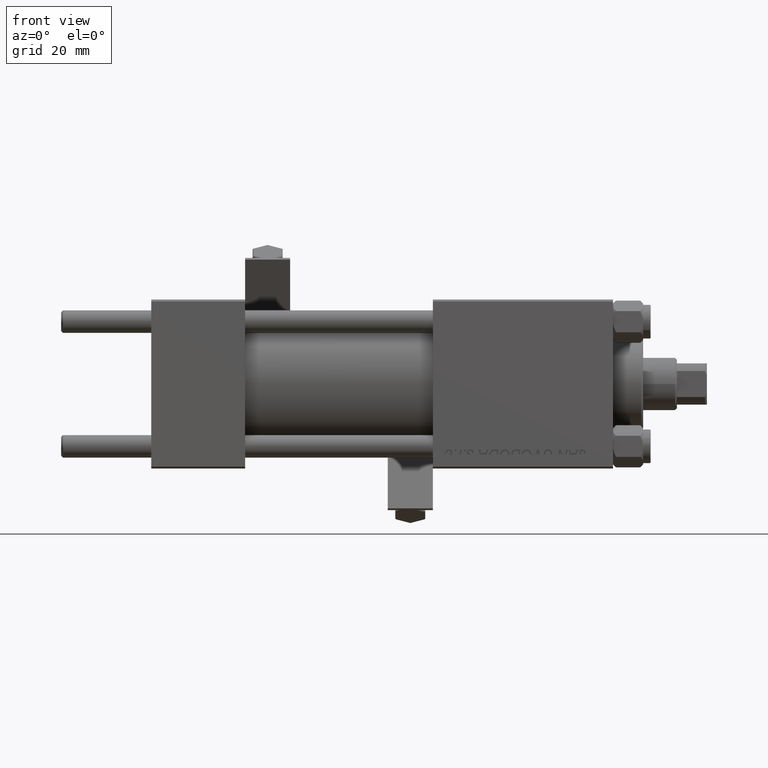
[diagram: clean part render]
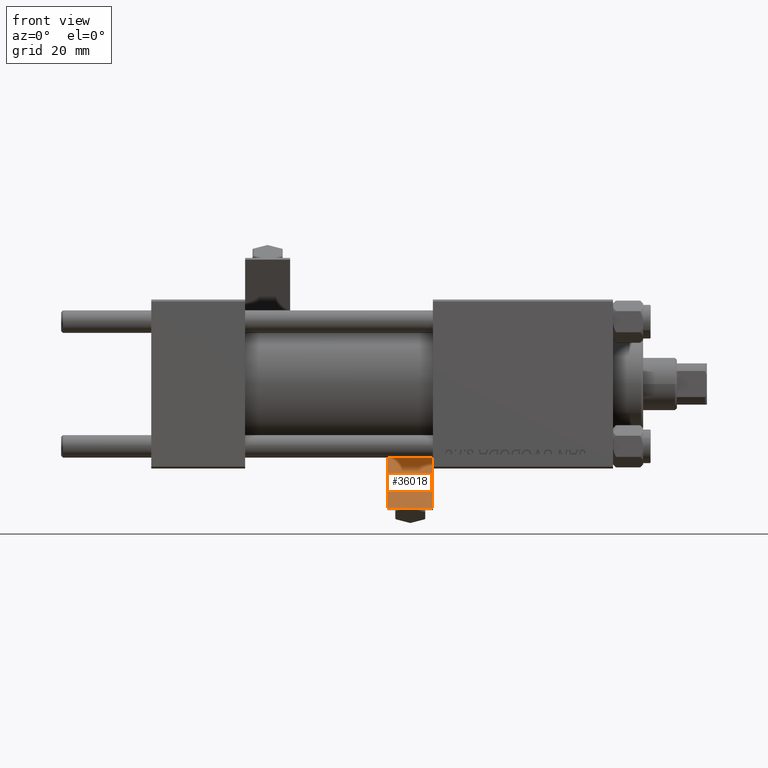
[diagram: same view with one face highlighted and labeled with its STEP entity id]
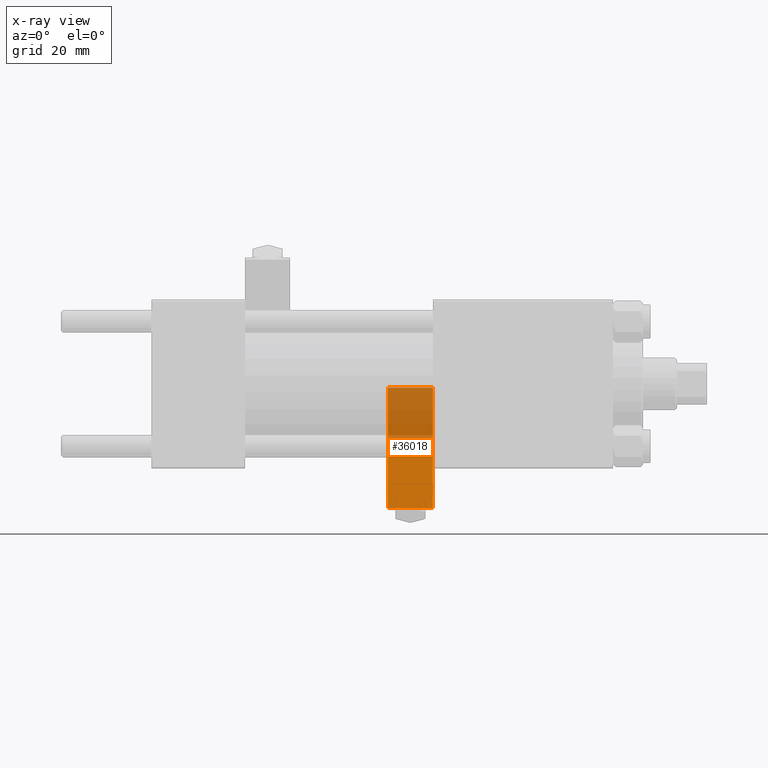
[diagram: x-ray of the same camera — body ghosted, the highlighted face saturated]
A machine part, front view. The second image highlights one B-rep face of the part: STEP entity #36018.
The next image is the same camera in x-ray: the body ghosted, the highlighted face saturated — about 58% of this face is hidden behind the body in this view.
In plain terms, the highlighted planar face has unit normal (-0, 0.8933, -0.4495).
Its self-contained STEP definition (entity closure, byte-faithful):
#5567 = DIRECTION ( 'NONE',  ( -0.000000000000000000, 1.000000000000000000, 0.000000000000000000 ) ) ;
#7931 = CARTESIAN_POINT ( 'NONE',  ( 9.740000000000000213, 0.000000000000000000, 6.000000000000005329 ) ) ;
#8991 = VERTEX_POINT ( 'NONE', #18693 ) ;
#10495 = VERTEX_POINT ( 'NONE', #20676 ) ;
#11173 = ORIENTED_EDGE ( 'NONE', *, *, #19023, .F. ) ;
#15105 = EDGE_CURVE ( 'NONE', #8991, #38434, #46283, .T. ) ;
#17083 = AXIS2_PLACEMENT_3D ( 'NONE', #21308, #5567, #37036 ) ;
#17421 = CARTESIAN_POINT ( 'NONE',  ( -7.780000000000000249, 0.000000000000000000, -6.000000000000000000 ) ) ;
#18005 = CARTESIAN_POINT ( 'NONE',  ( 28.24000000000000199, 0.000000000000000000, 6.000000000000005329 ) ) ;
#18693 = CARTESIAN_POINT ( 'NONE',  ( 28.24000000000000199, 0.000000000000000000, -6.000000000000000000 ) ) ;
#19023 = EDGE_CURVE ( 'NONE', #10495, #8991, #21883, .T. ) ;
#20676 = CARTESIAN_POINT ( 'NONE',  ( 28.24000000000000199, 0.000000000000000000, 6.000000000000005329 ) ) ;
#21308 = CARTESIAN_POINT ( 'NONE',  ( 9.740000000000000213, 0.000000000000000000, 6.000000000000005329 ) ) ;
#21451 = VECTOR ( 'NONE', #22340, 1000.000000000000000 ) ;
#21497 = VERTEX_POINT ( 'NONE', #44603 ) ;
#21883 = LINE ( 'NONE', #18005, #43738 ) ;
#22340 = DIRECTION ( 'NONE',  ( -1.000000000000000000, -0.000000000000000000, -0.000000000000000000 ) ) ;
#23062 = ORIENTED_EDGE ( 'NONE', *, *, #33444, .F. ) ;
#26668 = VECTOR ( 'NONE', #26795, 1000.000000000000000 ) ;
#26795 = DIRECTION ( 'NONE',  ( -1.000000000000000000, -0.000000000000000000, -0.000000000000000000 ) ) ;
#27328 = ORIENTED_EDGE ( 'NONE', *, *, #15105, .F. ) ;
#27762 = EDGE_CURVE ( 'NONE', #10495, #21497, #31165, .T. ) ;
#28780 = DIRECTION ( 'NONE',  ( 0.000000000000000000, 0.000000000000000000, 1.000000000000000000 ) ) ;
#31165 = LINE ( 'NONE', #7931, #26668 ) ;
#31355 = CARTESIAN_POINT ( 'NONE',  ( -7.780000000000000249, 0.000000000000000000, -6.000000000000000000 ) ) ;
#32789 = EDGE_LOOP ( 'NONE', ( #42311, #23062, #27328, #11173 ) ) ;
#33444 = EDGE_CURVE ( 'NONE', #38434, #21497, #41115, .T. ) ;
#33745 = DIRECTION ( 'NONE',  ( 0.000000000000000000, 0.000000000000000000, -1.000000000000000000 ) ) ;
#36018 = ADVANCED_FACE ( 'NONE', ( #44741 ), #40882, .F. ) ;
#37036 = DIRECTION ( 'NONE',  ( 0.000000000000000000, -0.000000000000000000, 1.000000000000000000 ) ) ;
#38434 = VERTEX_POINT ( 'NONE', #31355 ) ;
#38829 = CARTESIAN_POINT ( 'NONE',  ( 9.740000000000000213, 0.000000000000000000, -6.000000000000000000 ) ) ;
#40882 = PLANE ( 'NONE',  #17083 ) ;
#41115 = LINE ( 'NONE', #17421, #49064 ) ;
#42311 = ORIENTED_EDGE ( 'NONE', *, *, #27762, .T. ) ;
#43738 = VECTOR ( 'NONE', #33745, 1000.000000000000000 ) ;
#44603 = CARTESIAN_POINT ( 'NONE',  ( -7.780000000000000249, 0.000000000000000000, 6.000000000000005329 ) ) ;
#44741 = FACE_OUTER_BOUND ( 'NONE', #32789, .T. ) ;
#46283 = LINE ( 'NONE', #38829, #21451 ) ;
#49064 = VECTOR ( 'NONE', #28780, 1000.000000000000000 ) ;